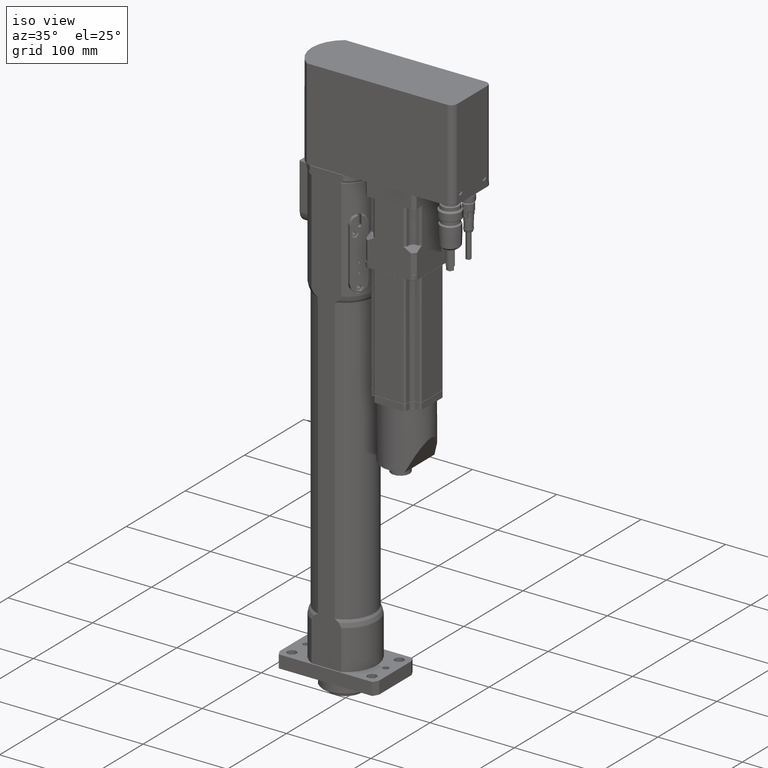
[diagram: clean part render]
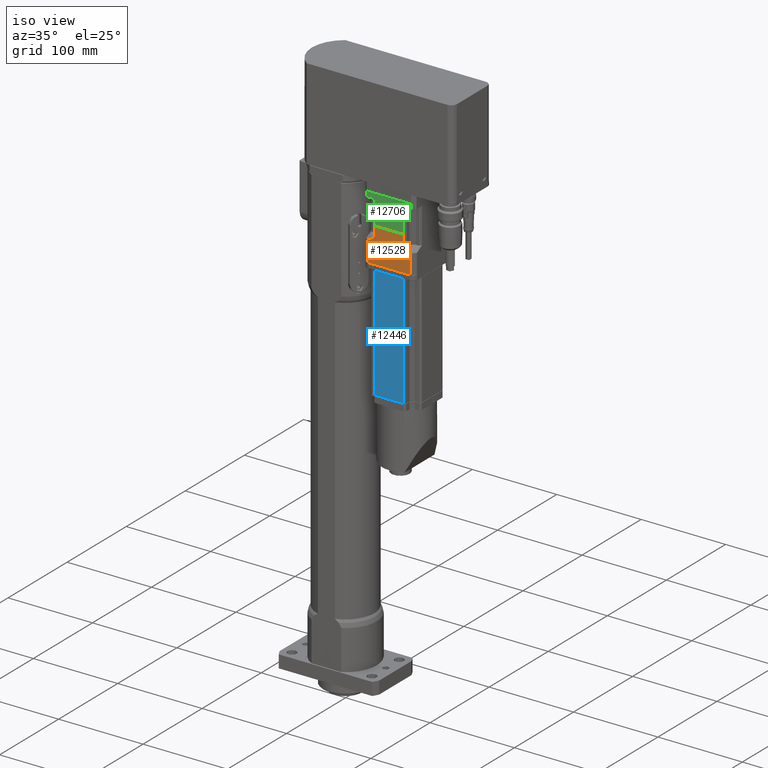
[diagram: same view with three faces highlighted in distinct colors, each labeled with its STEP entity id]
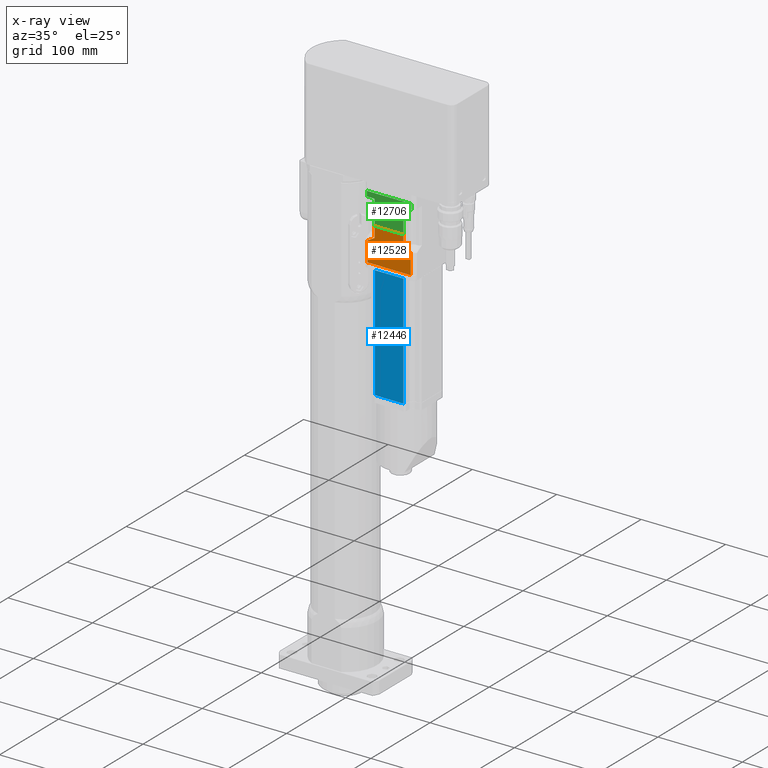
[diagram: x-ray of the same camera — body ghosted, the three highlighted faces saturated]
A machine part, iso view with three faces highlighted in distinct colors.
The next image is the same camera in x-ray (body ghosted, the three faces saturated) — at least one of them is partly hidden behind the body in this view.
Their STEP definitions:

[orange] entity #12528 — the highlighted planar face has unit normal (-0, -1, 0).
#26=(
BOUNDED_CURVE()
B_SPLINE_CURVE(2,(#22779,#22780,#22781),.UNSPECIFIED.,.F.,.F.)
B_SPLINE_CURVE_WITH_KNOTS((3,3),(-3.69965669392681,-2.54152590497577),
 .UNSPECIFIED.)
CURVE()
GEOMETRIC_REPRESENTATION_ITEM()
RATIONAL_B_SPLINE_CURVE((1.45736434108529,1.41367336988718,1.35251798561204))
REPRESENTATION_ITEM('')
);
#33=(
BOUNDED_CURVE()
B_SPLINE_CURVE(2,(#22836,#22837,#22838),.UNSPECIFIED.,.F.,.F.)
B_SPLINE_CURVE_WITH_KNOTS((3,3),(-10.6524120970008,-9.4942813080497),
 .UNSPECIFIED.)
CURVE()
GEOMETRIC_REPRESENTATION_ITEM()
RATIONAL_B_SPLINE_CURVE((1.35251798561204,1.41367336988718,1.45736434108529))
REPRESENTATION_ITEM('')
);
#765=LINE('',#22682,#1701);
#779=LINE('',#22751,#1715);
#780=LINE('',#22756,#1716);
#787=LINE('',#22841,#1723);
#792=LINE('',#22874,#1728);
#793=LINE('',#22876,#1729);
#794=LINE('',#22878,#1730);
#795=LINE('',#22879,#1731);
#1701=VECTOR('',#16507,50.);
#1715=VECTOR('',#16595,0.695330315059516);
#1716=VECTOR('',#16602,0.695330315060492);
#1723=VECTOR('',#16659,23.5);
#1728=VECTOR('',#16704,23.5);
#1729=VECTOR('',#16705,13.);
#1730=VECTOR('',#16706,34.0734500748);
#1731=VECTOR('',#16707,13.);
#2501=PLANE('',#13799);
#3311=FACE_OUTER_BOUND('',#4181,.T.);
#4181=EDGE_LOOP('',(#10164,#10165,#10166,#10167,#10168,#10169,#10170,#10171,
#10172,#10173));
#5858=VERTEX_POINT('',#22673);
#5860=VERTEX_POINT('',#22680);
#5878=VERTEX_POINT('',#22750);
#5879=VERTEX_POINT('',#22754);
#5887=VERTEX_POINT('',#22775);
#5889=VERTEX_POINT('',#22778);
#5904=VERTEX_POINT('',#22824);
#5908=VERTEX_POINT('',#22834);
#5917=VERTEX_POINT('',#22875);
#5918=VERTEX_POINT('',#22877);
#7354=EDGE_CURVE('',#5860,#5858,#765,.T.);
#7386=EDGE_CURVE('',#5858,#5878,#779,.T.);
#7389=EDGE_CURVE('',#5879,#5860,#780,.T.);
#7399=EDGE_CURVE('',#5889,#5887,#26,.T.);
#7420=EDGE_CURVE('',#5904,#5908,#33,.T.);
#7422=EDGE_CURVE('',#5887,#5878,#787,.T.);
#7434=EDGE_CURVE('',#5904,#5879,#792,.T.);
#7435=EDGE_CURVE('',#5917,#5908,#793,.T.);
#7436=EDGE_CURVE('',#5917,#5918,#794,.T.);
#7437=EDGE_CURVE('',#5918,#5889,#795,.T.);
#10164=ORIENTED_EDGE('',*,*,#7389,.F.);
#10165=ORIENTED_EDGE('',*,*,#7434,.F.);
#10166=ORIENTED_EDGE('',*,*,#7420,.T.);
#10167=ORIENTED_EDGE('',*,*,#7435,.F.);
#10168=ORIENTED_EDGE('',*,*,#7436,.T.);
#10169=ORIENTED_EDGE('',*,*,#7437,.T.);
#10170=ORIENTED_EDGE('',*,*,#7399,.T.);
#10171=ORIENTED_EDGE('',*,*,#7422,.T.);
#10172=ORIENTED_EDGE('',*,*,#7386,.F.);
#10173=ORIENTED_EDGE('',*,*,#7354,.F.);
#12528=ADVANCED_FACE('',(#3311),#2501,.T.);
#13799=AXIS2_PLACEMENT_3D('',#22873,#16702,#16703);
#16507=DIRECTION('',(1.,-1.70828439083748E-15,6.12864908203916E-16));
#16595=DIRECTION('',(1.,-1.70828439083748E-15,6.12864908203916E-16));
#16602=DIRECTION('',(1.,-1.70828439083748E-15,6.12864908203916E-16));
#16659=DIRECTION('',(6.12864908203916E-16,3.94430452610506E-31,-1.));
#16702=DIRECTION('center_axis',(1.70828439083748E-15,1.,1.36818063249271E-30));
#16703=DIRECTION('ref_axis',(1.,0.,0.));
#16704=DIRECTION('',(6.12864908203916E-16,3.94430452610506E-31,-1.));
#16705=DIRECTION('',(6.12864908203916E-16,3.94430452610506E-31,-1.));
#16706=DIRECTION('',(1.,-1.67849944170064E-16,5.40621472491078E-16));
#16707=DIRECTION('',(6.12864908203916E-16,3.94430452610506E-31,-1.));
#22673=CARTESIAN_POINT('',(-47.4999999999996,30.0000000000001,374.500000000001));
#22680=CARTESIAN_POINT('',(-97.4999999999996,30.0000000000001,374.500000000001));
#22682=CARTESIAN_POINT('',(-98.1953303150601,30.0000000000001,374.5));
#22750=CARTESIAN_POINT('',(-46.8046696849401,30.,374.5));
#22751=CARTESIAN_POINT('',(-98.1953303150601,30.0000000000001,374.5));
#22754=CARTESIAN_POINT('',(-98.1953303150601,30.0000000000001,374.5));
#22756=CARTESIAN_POINT('',(-98.1953303150601,30.0000000000001,374.5));
#22775=CARTESIAN_POINT('',(-46.8046696849402,30.,398.));
#22778=CARTESIAN_POINT('',(-55.4632749626002,30.,403.));
#22779=CARTESIAN_POINT('Ctrl Pts',(-55.463274962601,30.,403.000000000001));
#22780=CARTESIAN_POINT('Ctrl Pts',(-51.4264927723586,30.,401.006563819971));
#22781=CARTESIAN_POINT('Ctrl Pts',(-46.8046696849827,30.,398.000000000028));
#22824=CARTESIAN_POINT('',(-98.1953303150601,30.0000000000001,398.));
#22834=CARTESIAN_POINT('',(-89.5367250374002,30.0000000000001,403.));
#22836=CARTESIAN_POINT('Ctrl Pts',(-98.1953303150176,30.0000000000001,398.000000000028));
#22837=CARTESIAN_POINT('Ctrl Pts',(-93.5735072276417,30.0000000000001,401.006563819971));
#22838=CARTESIAN_POINT('Ctrl Pts',(-89.5367250373993,30.0000000000001,403.000000000001));
#22841=CARTESIAN_POINT('',(-46.8046696849402,30.,398.));
#22873=CARTESIAN_POINT('Origin',(-89.5367250374002,30.0000000000001,416.));
#22874=CARTESIAN_POINT('',(-98.1953303150601,30.0000000000001,398.));
#22875=CARTESIAN_POINT('',(-89.5367250374002,30.,416.));
#22876=CARTESIAN_POINT('',(-89.5367250374002,30.0000000000001,416.));
#22877=CARTESIAN_POINT('',(-55.4632749626002,30.,416.));
#22878=CARTESIAN_POINT('',(-89.5367250374002,30.,416.));
#22879=CARTESIAN_POINT('',(-55.4632749626002,30.,416.));

[blue] entity #12446 — the highlighted planar face has unit normal (-0, -1, 0).
#663=LINE('',#22365,#1599);
#703=LINE('',#22486,#1639);
#704=LINE('',#22492,#1640);
#705=LINE('',#22493,#1641);
#1599=VECTOR('',#16145,34.);
#1639=VECTOR('',#16285,133.8);
#1640=VECTOR('',#16292,133.8);
#1641=VECTOR('',#16293,34.);
#2459=PLANE('',#13637);
#3229=FACE_OUTER_BOUND('',#4081,.T.);
#4081=EDGE_LOOP('',(#9811,#9812,#9813,#9814));
#5774=VERTEX_POINT('',#22359);
#5775=VERTEX_POINT('',#22363);
#5806=VERTEX_POINT('',#22485);
#5808=VERTEX_POINT('',#22491);
#7195=EDGE_CURVE('',#5774,#5775,#663,.T.);
#7255=EDGE_CURVE('',#5806,#5775,#703,.T.);
#7258=EDGE_CURVE('',#5808,#5774,#704,.T.);
#7259=EDGE_CURVE('',#5806,#5808,#705,.T.);
#9811=ORIENTED_EDGE('',*,*,#7195,.F.);
#9812=ORIENTED_EDGE('',*,*,#7258,.F.);
#9813=ORIENTED_EDGE('',*,*,#7259,.F.);
#9814=ORIENTED_EDGE('',*,*,#7255,.T.);
#12446=ADVANCED_FACE('',(#3229),#2459,.T.);
#13637=AXIS2_PLACEMENT_3D('',#22490,#16290,#16291);
#16145=DIRECTION('',(1.,4.15017143758144E-16,-9.5486277816282E-16));
#16285=DIRECTION('',(-9.5486277816282E-16,-1.12787535060299E-31,-1.));
#16290=DIRECTION('center_axis',(-4.15017143758145E-16,1.,2.83496887813802E-31));
#16291=DIRECTION('ref_axis',(1.,0.,0.));
#16292=DIRECTION('',(-9.5486277816282E-16,-1.12787535060299E-31,-1.));
#16293=DIRECTION('',(-1.,-4.15017143758144E-16,9.5486277816282E-16));
#22359=CARTESIAN_POINT('',(-89.4999999999998,30.0000000000001,234.700000000001));
#22363=CARTESIAN_POINT('',(-55.4999999999998,30.0000000000001,234.700000000001));
#22365=CARTESIAN_POINT('',(-80.9999999999998,30.0000000000001,234.700000000001));
#22485=CARTESIAN_POINT('',(-55.4999999999997,30.0000000000001,368.500000000001));
#22486=CARTESIAN_POINT('',(-55.4999999999997,30.0000000000001,368.500000000001));
#22490=CARTESIAN_POINT('Origin',(-89.4999999999996,30.0000000000001,368.500000000001));
#22491=CARTESIAN_POINT('',(-89.4999999999996,30.0000000000001,368.500000000001));
#22492=CARTESIAN_POINT('',(-89.4999999999996,30.0000000000001,368.500000000001));
#22493=CARTESIAN_POINT('',(-55.4999999999997,30.0000000000001,368.500000000001));

[green] entity #12706 — the highlighted planar face has unit normal (-0, -1, 0).
#794=LINE('',#22878,#1730);
#796=LINE('',#22882,#1732);
#813=LINE('',#22927,#1749);
#913=LINE('',#23271,#1849);
#916=LINE('',#23278,#1852);
#918=LINE('',#23284,#1854);
#1052=LINE('',#24150,#1988);
#1053=LINE('',#24151,#1989);
#1730=VECTOR('',#16706,34.0734500748);
#1732=VECTOR('',#16710,29.);
#1749=VECTOR('',#16753,29.);
#1849=VECTOR('',#17007,6.);
#1852=VECTOR('',#17014,52.9150262212918);
#1854=VECTOR('',#17020,6.);
#1988=VECTOR('',#17578,9.42078807325);
#1989=VECTOR('',#17579,9.42078807325);
#2591=PLANE('',#14106);
#3489=FACE_OUTER_BOUND('',#4405,.T.);
#4405=EDGE_LOOP('',(#11048,#11049,#11050,#11051,#11052,#11053,#11054,#11055));
#5917=VERTEX_POINT('',#22875);
#5918=VERTEX_POINT('',#22877);
#5919=VERTEX_POINT('',#22881);
#5934=VERTEX_POINT('',#22925);
#6026=VERTEX_POINT('',#23268);
#6027=VERTEX_POINT('',#23270);
#6029=VERTEX_POINT('',#23276);
#6031=VERTEX_POINT('',#23282);
#7436=EDGE_CURVE('',#5917,#5918,#794,.T.);
#7438=EDGE_CURVE('',#5918,#5919,#796,.T.);
#7461=EDGE_CURVE('',#5917,#5934,#813,.T.);
#7595=EDGE_CURVE('',#6026,#6027,#913,.T.);
#7599=EDGE_CURVE('',#6026,#6029,#916,.T.);
#7602=EDGE_CURVE('',#6029,#6031,#918,.T.);
#7869=EDGE_CURVE('',#6027,#5934,#1052,.T.);
#7870=EDGE_CURVE('',#5919,#6031,#1053,.T.);
#11048=ORIENTED_EDGE('',*,*,#7869,.F.);
#11049=ORIENTED_EDGE('',*,*,#7595,.F.);
#11050=ORIENTED_EDGE('',*,*,#7599,.T.);
#11051=ORIENTED_EDGE('',*,*,#7602,.T.);
#11052=ORIENTED_EDGE('',*,*,#7870,.F.);
#11053=ORIENTED_EDGE('',*,*,#7438,.F.);
#11054=ORIENTED_EDGE('',*,*,#7436,.F.);
#11055=ORIENTED_EDGE('',*,*,#7461,.T.);
#12706=ADVANCED_FACE('',(#3489),#2591,.T.);
#14106=AXIS2_PLACEMENT_3D('',#24149,#17576,#17577);
#16706=DIRECTION('',(1.,-1.67849944170064E-16,5.40621472491078E-16));
#16710=DIRECTION('',(-5.40621472491078E-16,-4.44645409684621E-31,1.));
#16753=DIRECTION('',(-5.40621472491078E-16,-4.44645409684621E-31,1.));
#17007=DIRECTION('',(5.40621472491078E-16,4.44645409684621E-31,-1.));
#17014=DIRECTION('',(1.,-1.67849944170063E-16,0.));
#17020=DIRECTION('',(5.40621472491078E-16,4.44645409684621E-31,-1.));
#17576=DIRECTION('center_axis',(1.67849944170064E-16,1.,5.35388693659386E-31));
#17577=DIRECTION('ref_axis',(1.,0.,0.));
#17578=DIRECTION('',(1.,-1.67849944170064E-16,5.40621472491078E-16));
#17579=DIRECTION('',(1.,-1.67849944170064E-16,5.40621472491078E-16));
#22875=CARTESIAN_POINT('',(-89.5367250374002,30.,416.));
#22877=CARTESIAN_POINT('',(-55.4632749626002,30.,416.));
#22878=CARTESIAN_POINT('',(-89.5367250374002,30.,416.));
#22881=CARTESIAN_POINT('',(-55.4632749626002,30.,445.));
#22882=CARTESIAN_POINT('',(-55.4632749626002,30.,416.));
#22925=CARTESIAN_POINT('',(-89.5367250374002,30.,445.));
#22927=CARTESIAN_POINT('',(-89.5367250374002,30.,416.));
#23268=CARTESIAN_POINT('',(-98.9575131106459,30.,451.));
#23270=CARTESIAN_POINT('',(-98.9575131106502,30.,445.));
#23271=CARTESIAN_POINT('',(-98.9575131106502,30.,451.));
#23276=CARTESIAN_POINT('',(-46.0424868893541,30.,451.));
#23278=CARTESIAN_POINT('',(-98.9575131106459,30.,451.));
#23282=CARTESIAN_POINT('',(-46.0424868893502,30.,445.));
#23284=CARTESIAN_POINT('',(-46.0424868893502,30.,451.));
#24149=CARTESIAN_POINT('Origin',(-98.9575131106502,30.,451.));
#24150=CARTESIAN_POINT('',(-98.9575131106502,30.,445.));
#24151=CARTESIAN_POINT('',(-55.4632749626002,30.,445.));